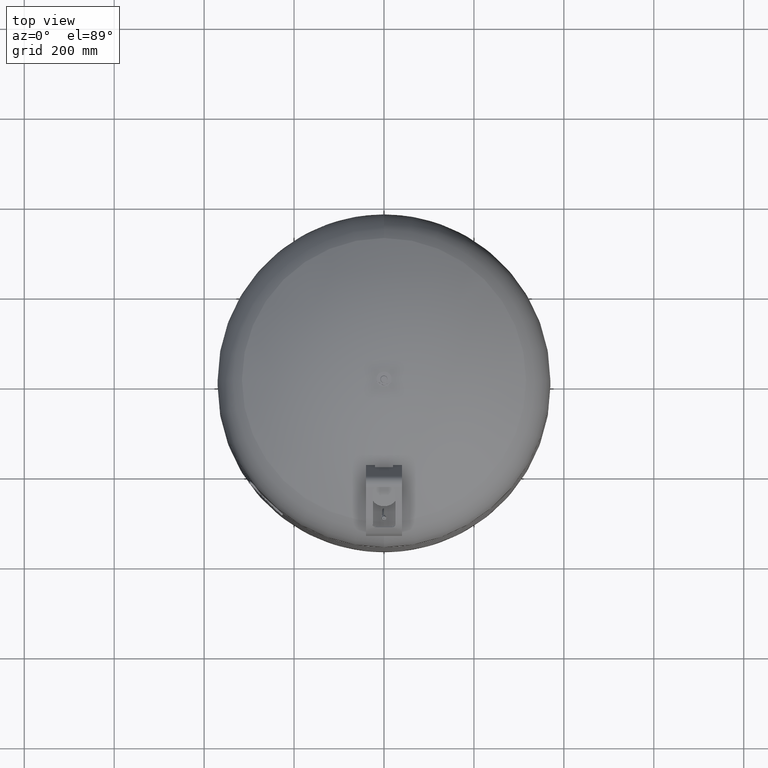
[diagram: clean part render]
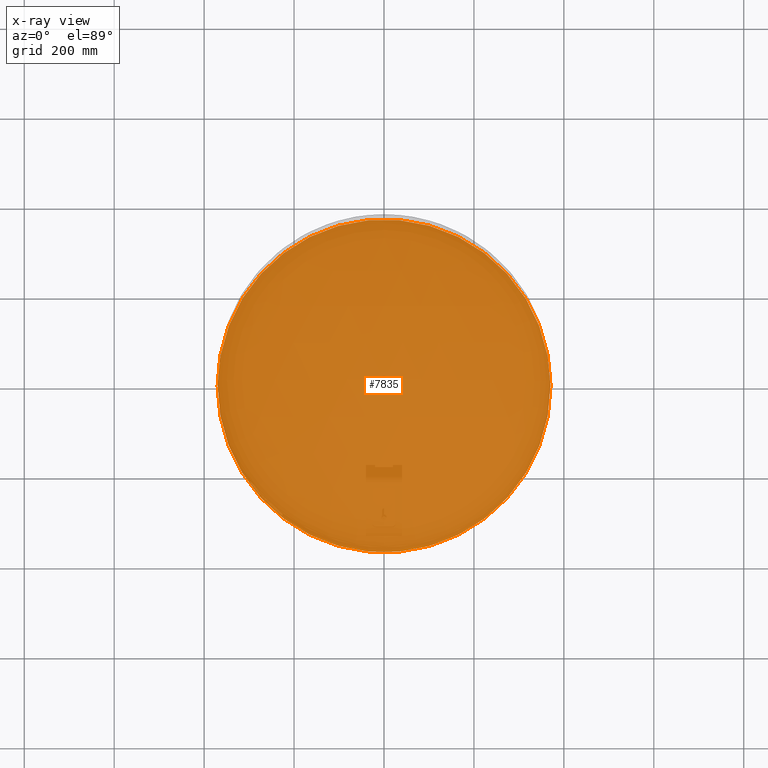
[diagram: x-ray — body ghosted, one internal face saturated and labeled with its STEP entity id]
A machine part, top view, then the same camera in x-ray: the body is ghosted and one INTERNAL B-rep face — a face not visible from any outside direction — is saturated and labeled: STEP entity #7835.
In plain terms, the highlighted planar face has unit normal (0, 0, 1).
Its self-contained STEP definition (entity closure, byte-faithful):
#7673=CARTESIAN_POINT('',(-370.000000000000060,-3.471874E-014,374.999999999999940));
#7674=VERTEX_POINT('',#7673);
#7683=CARTESIAN_POINT('',(370.0,1.059170E-014,374.999999999999940));
#7684=VERTEX_POINT('',#7683);
#7685=CARTESIAN_POINT('',(0.0,-3.471874E-014,374.999999999999940));
#7686=DIRECTION('',(0.0,0.0,1.0));
#7687=DIRECTION('',(-1.0,0.0,0.0));
#7688=AXIS2_PLACEMENT_3D('',#7685,#7686,#7687);
#7689=CIRCLE('',#7688,370.000000000000060);
#7690=EDGE_CURVE('',#7684,#7674,#7689,.T.);
#7816=CARTESIAN_POINT('',(0.0,-3.471874E-014,374.999999999999940));
#7817=DIRECTION('',(0.0,0.0,1.0));
#7818=DIRECTION('',(-1.0,0.0,0.0));
#7819=AXIS2_PLACEMENT_3D('',#7816,#7817,#7818);
#7820=CIRCLE('',#7819,370.000000000000060);
#7821=EDGE_CURVE('',#7674,#7684,#7820,.T.);
#7826=CARTESIAN_POINT('',(-185.000000000000030,-3.471874E-014,375.0));
#7827=DIRECTION('',(0.0,0.0,1.0));
#7828=DIRECTION('',(0.0,-1.0,0.0));
#7829=AXIS2_PLACEMENT_3D('',#7826,#7827,#7828);
#7830=PLANE('',#7829);
#7831=ORIENTED_EDGE('',*,*,#7821,.T.);
#7832=ORIENTED_EDGE('',*,*,#7690,.T.);
#7833=EDGE_LOOP('',(#7831,#7832));
#7834=FACE_OUTER_BOUND('',#7833,.T.);
#7835=ADVANCED_FACE('',(#7834),#7830,.T.);